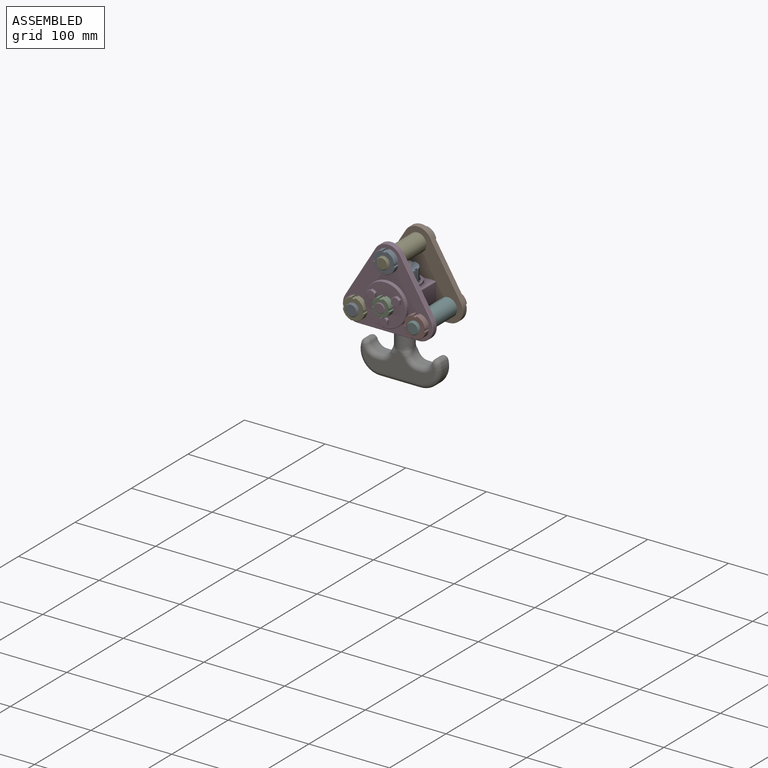
[diagram: assembled view]
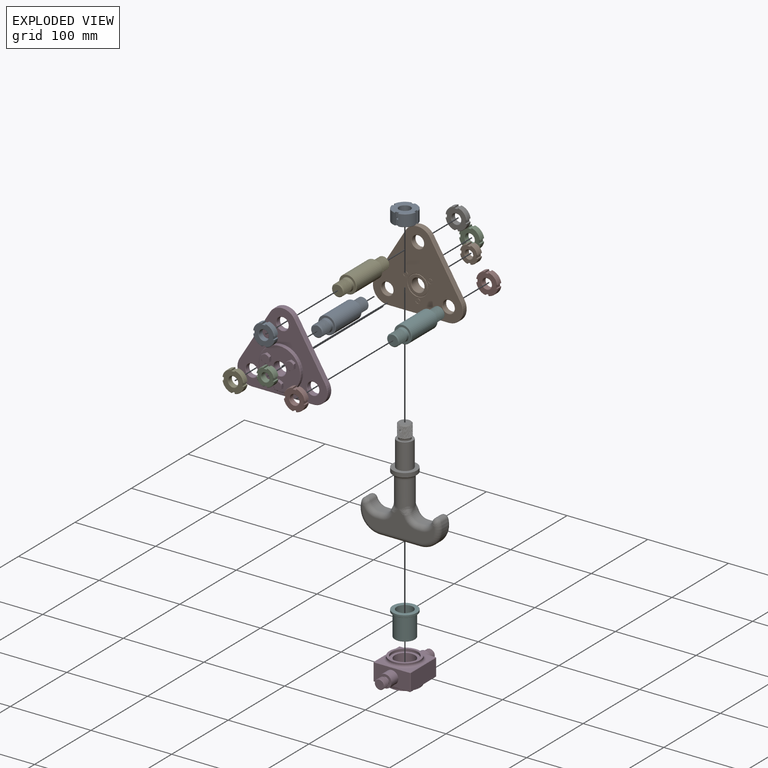
[diagram: exploded view]
GUIDED TOUR — MATED ASSEMBLY WITH SUBASSEMBLIES (Onshape document 79212cf4ececd10799b1dbc1, AutoMate assembly 79212cf4ececd10799b1dbc1_5e8a66c108269c9b4a3e70d1_1110fec8fb745d317670bb05_default)

This assembly has 25 component occurrences arranged in 17 top-level units: 15 individual components plus 2 subassemblies (S0, S1). The tour has two levels: first the top level, where each subassembly is treated as one rigid unit; then each subassembly is toured internally in its own section (nesting deeper than one subassembly level is flattened into its subassembly's section).

Components are labeled P0..P24 across the whole record; subassembly units are labeled S0..S1. A mate is a constraint between two units; its type names the relative motion it leaves free:
  FASTENED — locks the two components together rigidly (no relative motion),
  REVOLUTE — leaves rotation about the listed axis free (a hinge).
Axis/direction vectors are unit vectors and 'through' points are millimeter coordinates, both in the assembly's world frame.

TOP-LEVEL MATES (between units; each subassembly's internal mates are listed in its own section)
  1. FASTENED "Fastened 12": P5 <-> P0, direction (0.000, 0.000, 1.000) through (0.00, -30.00, 15.50) mm
  2. REVOLUTE "Revolute 1": S0 <-> P19, axis (0.000, -1.000, 0.000) through (0.00, -7.00, 0.00) mm
  3. REVOLUTE "Revolute 2": P19 <-> P5, axis (0.000, 0.000, 1.000) through (0.00, -30.00, 12.50) mm
  4. FASTENED "Fastened 8": P2 <-> S0, direction (0.000, -1.000, 0.000) through (-38.00, 0.00, -14.00) mm
  5. FASTENED "Fastened 1": P20 <-> S0, direction (0.000, 1.000, 0.000) through (0.00, -7.00, 48.39) mm
  6. FASTENED "Fastened 6": P6 <-> S0, direction (0.000, -1.000, 0.000) through (0.00, 0.00, 48.39) mm
  7. FASTENED "Fastened 3": S0 <-> P21, direction (0.000, -1.000, 0.000) through (38.00, -7.00, -14.00) mm
  8. FASTENED "Fastened 5": P20 <-> S1, direction (0.000, -1.000, 0.000) through (0.00, -53.00, 48.39) mm
  9. FASTENED "Fastened 7": P7 <-> S0, direction (0.000, -1.000, 0.000) through (38.00, 0.00, -14.00) mm
  10. FASTENED "Fastened 14": P18 <-> P19, direction (0.000, 1.000, 0.000) through (0.00, -65.00, 0.00) mm
  11. FASTENED "Fastened 11": P4 <-> S1, direction (0.000, 1.000, 0.000) through (-38.00, -60.00, -14.00) mm
  12. FASTENED "Fastened 10": P23 <-> S1, direction (0.000, 1.000, 0.000) through (38.00, -60.00, -14.00) mm
  13. FASTENED "Fastened 4": P22 <-> P5, direction (0.000, 0.000, 1.000) through (0.00, -30.00, 15.50) mm
  14. FASTENED "Fastened 13": P19 <-> P16, direction (0.000, 1.000, 0.000) through (0.00, 5.00, 0.00) mm
  15. FASTENED "Fastened 9": P10 <-> S1, direction (0.000, 1.000, 0.000) through (0.00, -60.00, 48.39) mm
  16. FASTENED "Fastened 2": P24 <-> S0, direction (0.000, 1.000, 0.000) through (-38.00, -7.00, -14.00) mm

TOP-LEVEL ASSEMBLY ORDER
  1. S0 — the base component [order heuristic]
  2. P2 — core [order heuristic]
  3. P7 — core [order heuristic]
  4. P19 — core [order heuristic]
  5. P20 — core [order heuristic]
  6. P21 — core [order heuristic]
  7. P24 — core [order heuristic]
  8. S1 — core [order heuristic]
  9. P5 — core [order heuristic]
  10. P16 — core [order heuristic]
  11. P18 — core [order heuristic]
  12. P22 — core [order heuristic]
  13. P4 — core [order heuristic]
  14. P6 [order verified]
  15. P0 — core [order heuristic]
  16. P23 — core [order heuristic]
  17. P10 — core [order heuristic]
Order-tag legend:
  [order verified] — this step's position reverses a verified removal order: the component was checked to insert without passing through the ones already placed.
  [order heuristic] — the first 16 components form the assembly's core: parts whose collision-free extraction could not be verified, listed in mate-graph order.

Of the 25 component occurrences, 5 carry the full construction recipe — the FeatureScript program that regenerates the part's solid from scratch; the rest are supplied as boundary geometry only. Each toured unit is shown spotlighted twice — assembled, then exploded with a leader line back to its socket (green = recipe-attached component, orange = geometry-only, blue = subassembly unit; the rest desaturated gray).
NOTE — document 2 of 2 of this assembly tour. The two overview renders and the header above are repeated from document 1; the component sections below continue where the previous document stopped.
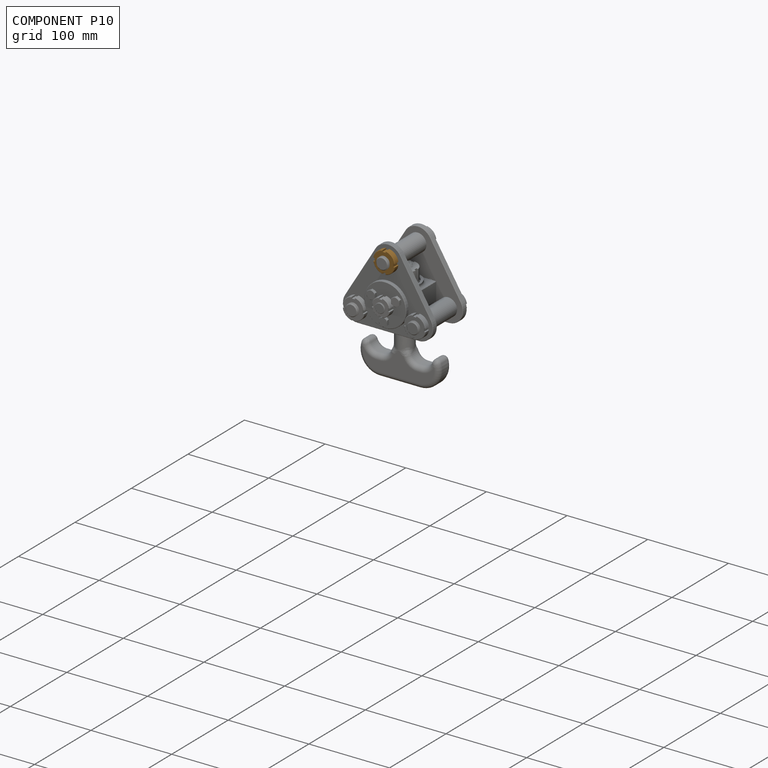
[diagram: component P10 — assembled]
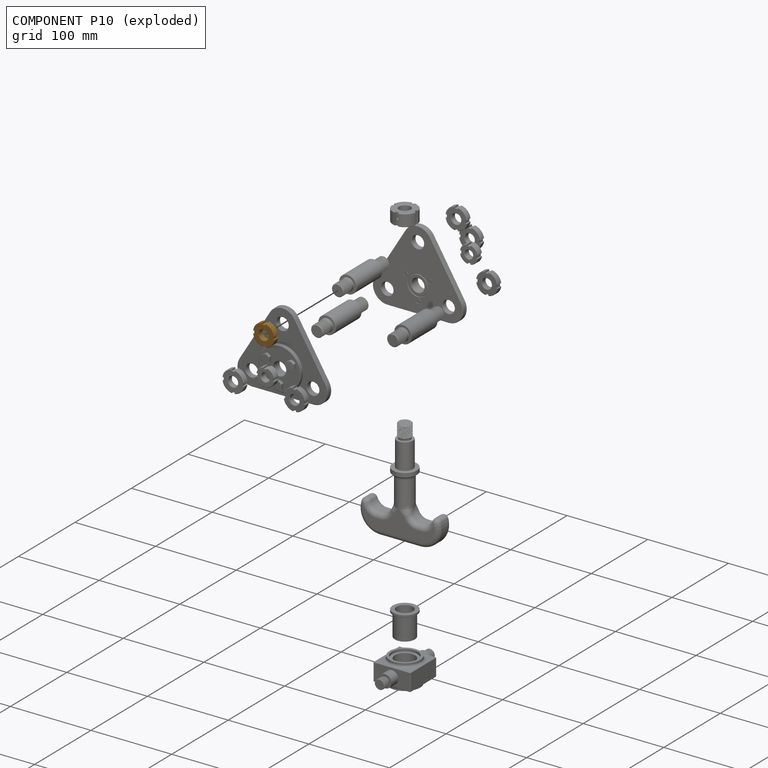
[diagram: component P10 — exploded]
COMPONENT P10 — geometry summary (no construction recipe available for this part):
  bounding box: 26.7 x 26.7 x 7.0 mm
  B-rep topology: 1 solid, 29 faces, 158 edges
  volume: 2958 mm^3 (59% of its bounding box)
  symmetry: 2-fold rotationally symmetric about the x axis; 2-fold rotationally symmetric about the y axis; 4-fold rotationally symmetric about the z axis; mirror-symmetric across its x mid-plane, y mid-plane, z mid-plane
Held by: FASTENED mate "Fastened 9" to P3.
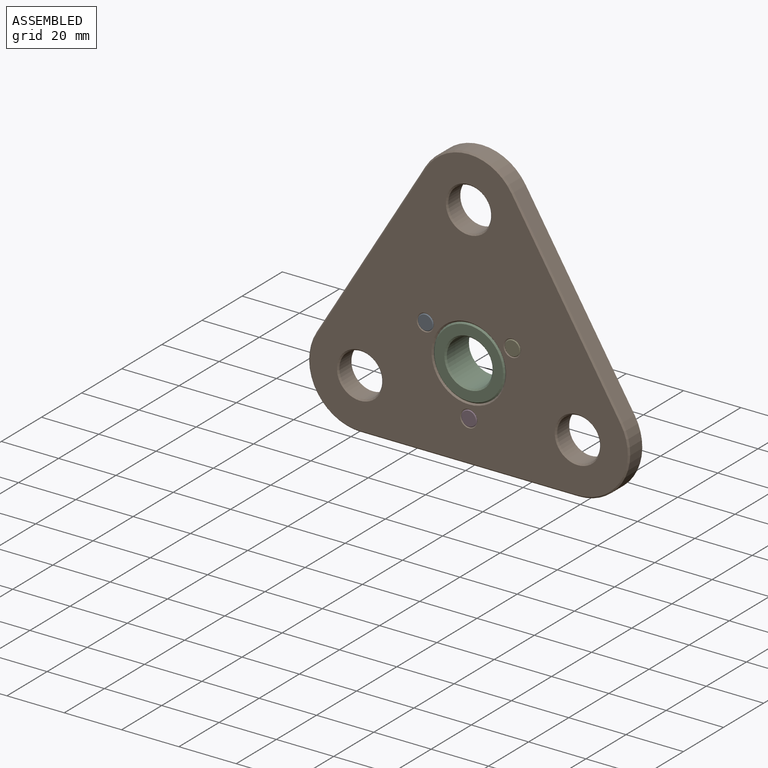
[diagram: subassembly S0 — assembled view]
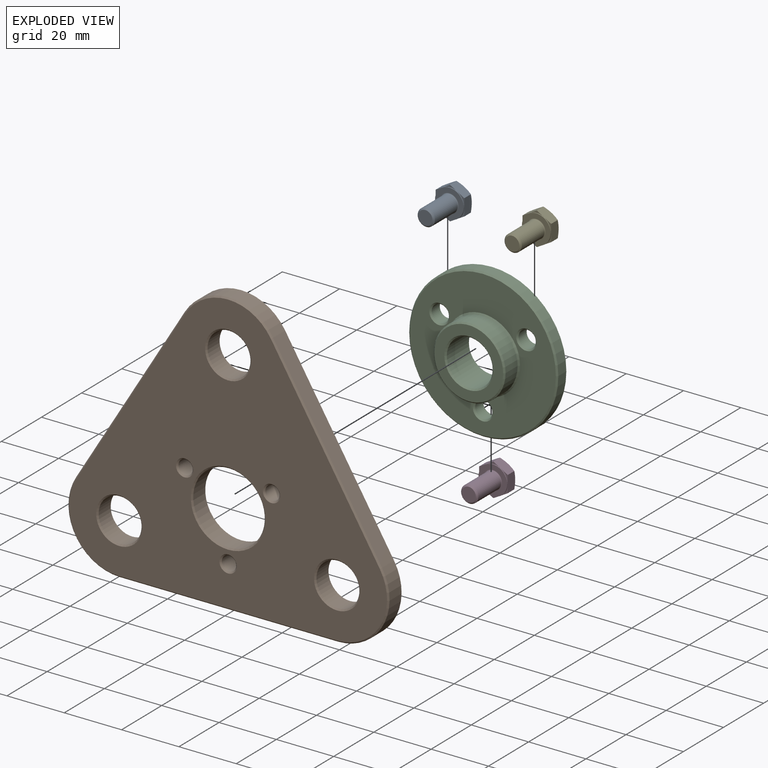
[diagram: subassembly S0 — exploded view]
SUBASSEMBLY S0 TOUR — 5 components, shown here in isolation at its own camera.

INTERNAL MATES
  1. FASTENED "Fastened 2": P1 <-> P12, direction (0.000, -1.000, 0.000) through (-15.16, 5.00, 8.75) mm
  2. FASTENED "Fastened 1": P12 <-> P8, direction (0.000, -1.000, 0.000) through (0.00, 0.00, 0.00) mm
  3. FASTENED "Fastened 2": P17 <-> P12, direction (0.000, -1.000, 0.000) through (15.16, 5.00, 8.75) mm
  4. FASTENED "Fastened 2": P15 <-> P12, direction (0.000, -1.000, 0.000) through (0.00, 5.00, -17.50) mm
  5. FASTENED "Fastened 1": P12 <-> P8, direction (0.000, -1.000, 0.000) through (0.00, 0.00, 0.00) mm
  6. FASTENED "Fastened 2": P1 <-> P12, direction (0.000, -1.000, 0.000) through (-15.16, 5.00, 8.75) mm
  7. FASTENED "Fastened 2": P17 <-> P12, direction (0.000, -1.000, 0.000) through (15.16, 5.00, 8.75) mm
  8. FASTENED "Fastened 2": P15 <-> P12, direction (0.000, -1.000, 0.000) through (0.00, 5.00, -17.50) mm

ASSEMBLY ORDER (within the subassembly)
  1. P12 — the base component [order heuristic]
  2. P8 — core [order heuristic]
  3. P17 [order verified]
  4. P1 [order verified]
  5. P15 [order verified]
Order-tag legend:
  [order verified] — this step's position reverses a verified removal order: the component was checked to insert without passing through the ones already placed.
  [order heuristic] — the first 2 components form the assembly's core: parts whose collision-free extraction could not be verified, listed in mate-graph order.
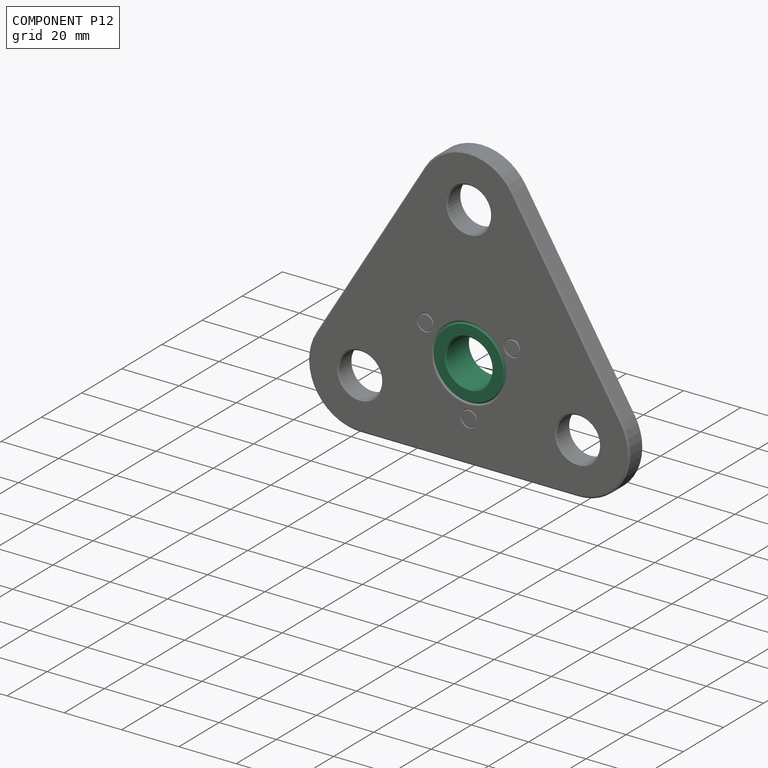
[diagram: component P12 — assembled]
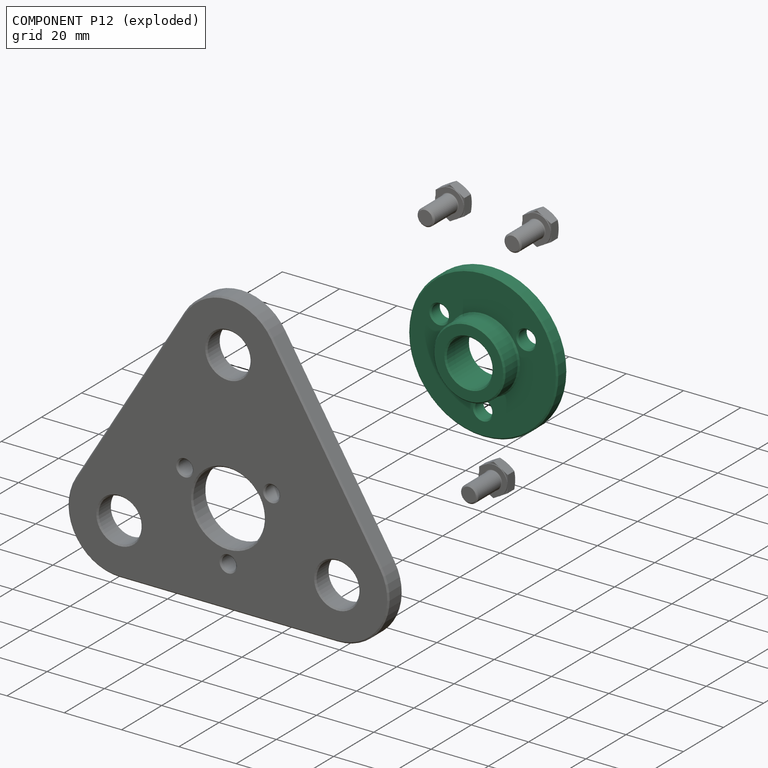
[diagram: component P12 — exploded]
COMPONENT P12 — recipe-attached (CADFS 00941908, mesh-verified: the recipe's output STEP matches this component's geometry to below the mesh-comparison resolution (tessellation chordal tolerance ~0.112 mm)).
Held by: FASTENED mate "Fastened 2" to P1; FASTENED mate "Fastened 1" to P8; FASTENED mate "Fastened 2" to P17; FASTENED mate "Fastened 2" to P15; FASTENED mate "Fastened 1" to P8; FASTENED mate "Fastened 2" to P1; FASTENED mate "Fastened 2" to P17; FASTENED mate "Fastened 2" to P15.
Construction recipe (FeatureScript — the CAD program that rebuilds this solid; sketch coordinates are in the units given by the * unit suffixes, e.g. mm):

FeatureScript 1977;
import(path : "onshape/std/geometry.fs", version : "1977.0");
import(path : "onshape/std/common.fs", version : "1977.0");
const mm = millimeter;
const VERTEX = EntityType.VERTEX;
const EDGE = EntityType.EDGE;
const FACE = EntityType.FACE;
const BODY = EntityType.BODY;
function v(x, y){return vector(x, y);}
function OD(order){return orderDisambiguation(order);}
function OSD(set){return originalSetDisambiguation(set);}
function TD(topology){return topologyDisambiguation(topology);}
function TDD(query){return trueDependencyDisambiguation(query);}
function sQuery(a, b, c) {return sketchEntityQuery(a, b, c);}

annotation { "Feature Type Name" : "Feature", "Feature Type Description" : "" }
export const myFeature = defineFeature(function(context is Context, id is Id, definition is map)
    precondition{}
    {
        {
            var Q0;
            Q0=qCreatedBy(makeId("Top.planeOp"),FACE);
            var sketch = newSketch(context, id + "F0", { "sketchPlane" : qUnion([Q0])});
            skCircle(sketch, "E0", {"center": v(0, 0) * mm, "radius": 26 * mm});
            skCircle(sketch, "E1", {"center": v(0, 0) * mm, "radius": 12.5 * mm});
            skCircle(sketch, "E2", {"center": v(0, 0) * mm, "radius": 17.5 * mm, "construction": true});
            skPoint(sketch, "E3", {"position": v(0, -17.5) * mm});
            skLineSegment(sketch, "E4", {"start": v(0, 0) * mm, "end": v(-15.16, 8.75) * mm, "construction": true});
            skLineSegment(sketch, "E5", {"start": v(0, 0) * mm, "end": v(15.16, 8.75) * mm, "construction": true});
            skCircle(sketch, "E6", {"center": v(0, -17.5) * mm, "radius": 3 * mm});
            skCircle(sketch, "E7", {"center": v(-15.16, 8.75) * mm, "radius": 3 * mm});
            skCircle(sketch, "E8", {"center": v(15.16, 8.75) * mm, "radius": 3 * mm});
            skCircle(sketch, "E9", {"center": v(0, 0) * mm, "radius": 8 * mm});
            skSolve(sketch);
        }
        {
            var Q0;
            Q0=makeQuery(id+"F0.imprint","IMPRINT",FACE,{"disambiguationData":[TD([[makeQuery(id+"F0.imprint","IMPRINT",EDGE,{"derivedFrom":sQuery(id+"F0.wireOp",EDGE,"E0")}),1.0]])]});
            extrude(context, id + "F1", {"entities" : qUnion([Q0]), "depth" : 5 * mm, "offsetDistance" : 25 * mm});
        }
        {
            var Q0;
            Q0=makeQuery(id+"F0.imprint","IMPRINT",FACE,{"disambiguationData":[TD([[makeQuery(id+"F0.imprint","IMPRINT",EDGE,{"derivedFrom":sQuery(id+"F0.wireOp",EDGE,"E1")}),1.0]])]});
            extrude(context, id + "F2", {"entities" : qUnion([Q0]), "operationType" : NewBodyOperationType.ADD, "depth" : 12 * mm, "offsetDistance" : 25 * mm});
        }
        {
            var Q0;
            Q0=makeQuery(id+"F2.opExtrude","CAP_FACE",FACE,{"disambiguationData":[OSD([sQuery(id+"F0.wireOp",EDGE,"E1"),sQuery(id+"F0.wireOp",EDGE,"E9")])],"isStart":false});
            var Q1;
            Q1=makeQuery(id+"F1.opExtrude","CAP_FACE",FACE,{"disambiguationData":[OSD([sQuery(id+"F0.wireOp",EDGE,"E0"),sQuery(id+"F0.wireOp",EDGE,"E1"),sQuery(id+"F0.wireOp",EDGE,"E6"),sQuery(id+"F0.wireOp",EDGE,"E7"),sQuery(id+"F0.wireOp",EDGE,"E8")])],"isStart":false});
            var Q2;
            {var subQ0=sQuery(id+"F0.wireOp",EDGE,"E1");Q2=makeQuery(id+"F2.boolean.opBoolean","MERGE",FACE,{"derivedFrom":[makeQuery(id+"F1.opExtrude","CAP_FACE",FACE,{"disambiguationData":[OSD([sQuery(id+"F0.wireOp",EDGE,"E0"),subQ0,sQuery(id+"F0.wireOp",EDGE,"E6"),sQuery(id+"F0.wireOp",EDGE,"E7"),sQuery(id+"F0.wireOp",EDGE,"E8")])],"isStart":true}),makeQuery(id+"F2.opExtrude","CAP_FACE",FACE,{"disambiguationData":[OSD([subQ0,sQuery(id+"F0.wireOp",EDGE,"E9")])],"isStart":true})]});}
            chamfer(context, id + "F3", {"entities" : qUnion([Q0, Q1, Q2]), "width" : 0.5 * mm, "tangentPropagation" : true});
        }
    });
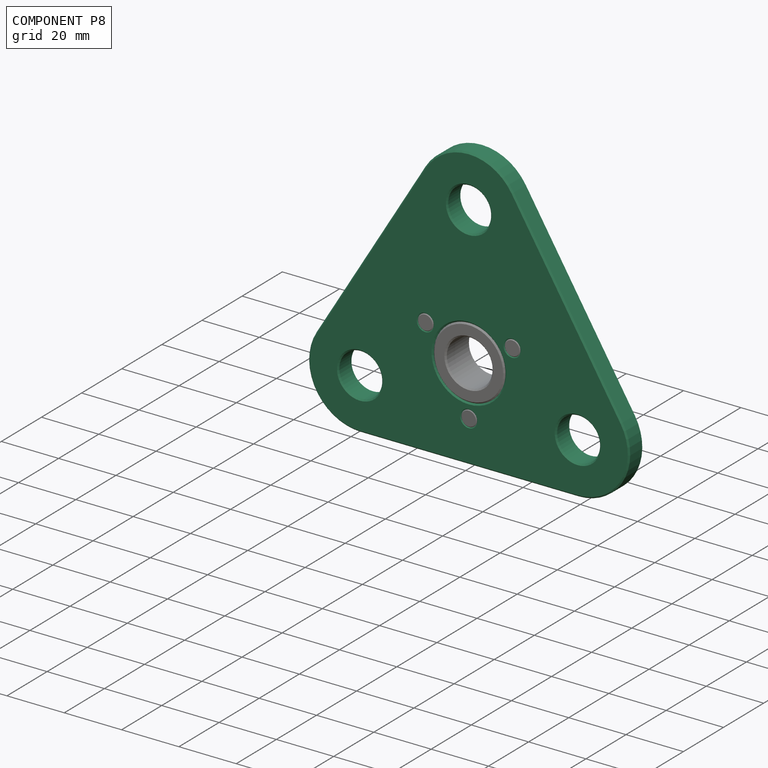
[diagram: component P8 — assembled]
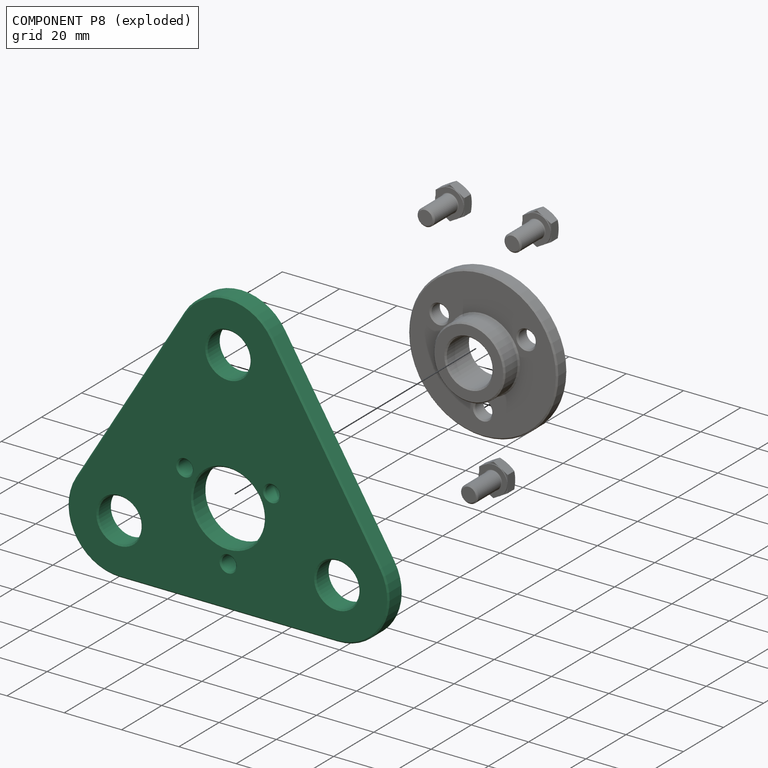
[diagram: component P8 — exploded]
COMPONENT P8 — recipe-attached (CADFS 00941914, mesh-verified: the recipe's output STEP matches this component's geometry to below the mesh-comparison resolution (tessellation chordal tolerance ~0.224 mm)).
Held by: FASTENED mate "Fastened 1" to P12; FASTENED mate "Fastened 1" to P12.
Construction recipe (FeatureScript — the CAD program that rebuilds this solid; sketch coordinates are in the units given by the * unit suffixes, e.g. mm):

FeatureScript 1977;
import(path : "onshape/std/geometry.fs", version : "1977.0");
import(path : "onshape/std/common.fs", version : "1977.0");
const mm = millimeter;
const VERTEX = EntityType.VERTEX;
const EDGE = EntityType.EDGE;
const FACE = EntityType.FACE;
const BODY = EntityType.BODY;
function v(x, y){return vector(x, y);}
function OD(order){return orderDisambiguation(order);}
function OSD(set){return originalSetDisambiguation(set);}
function TD(topology){return topologyDisambiguation(topology);}
function TDD(query){return trueDependencyDisambiguation(query);}
function sQuery(a, b, c) {return sketchEntityQuery(a, b, c);}

annotation { "Feature Type Name" : "Feature", "Feature Type Description" : "" }
export const myFeature = defineFeature(function(context is Context, id is Id, definition is map)
    precondition{}
    {
        {
            var Q0;
            Q0=qCreatedBy(makeId("Front.planeOp"),FACE);
            var sketch = newSketch(context, id + "F0", { "sketchPlane" : qUnion([Q0])});
            skLineSegment(sketch, "E0", {"start": v(-38, -32) * mm, "end": v(38, -32) * mm});
            skLineSegment(sketch, "E1", {"start": v(53.37, -4.64) * mm, "end": v(15.37, 57.76) * mm});
            skLineSegment(sketch, "E2", {"start": v(-15.37, 57.76) * mm, "end": v(-53.37, -4.64) * mm});
            skPoint(sketch, "E3.visualSharp", {"position": v(0, 83) * mm});
            skArc(sketch, "E3.filletArc", {"start": v(15.37, 57.76) * mm, "mid": v(0, 66.4) * mm, "end": v(-15.37, 57.76) * mm});
            skPoint(sketch, "E4.visualSharp", {"position": v(70.04, -32) * mm});
            skArc(sketch, "E4.filletArc", {"start": v(38, -32) * mm, "mid": v(53.7, -22.82) * mm, "end": v(53.37, -4.64) * mm});
            skPoint(sketch, "E5.visualSharp", {"position": v(-70.04, -32) * mm});
            skArc(sketch, "E5.filletArc", {"start": v(-53.37, -4.64) * mm, "mid": v(-53.7, -22.82) * mm, "end": v(-38, -32) * mm});
            skCircle(sketch, "E6", {"center": v(0, 48.4) * mm, "radius": 7.5 * mm});
            skCircle(sketch, "E7", {"center": v(-38, -14) * mm, "radius": 7.5 * mm});
            skCircle(sketch, "E8", {"center": v(38, -14) * mm, "radius": 7.5 * mm});
            skCircle(sketch, "E9", {"center": v(0, 0) * mm, "radius": 12.5 * mm});
            skCircle(sketch, "E10", {"center": v(0, 0) * mm, "radius": 17.5 * mm, "construction": true});
            skLineSegment(sketch, "E11", {"start": v(0, 0) * mm, "end": v(-15.16, 8.75) * mm, "construction": true});
            skLineSegment(sketch, "E12", {"start": v(0, 0) * mm, "end": v(15.16, 8.75) * mm, "construction": true});
            skPoint(sketch, "E13", {"position": v(0, -17.5) * mm});
            skSolve(sketch);
        }
        {
            var Q0;
            Q0 = qSketchRegion(id + "F0", true);
            extrude(context, id + "F1", {"entities" : qUnion([Q0]), "depth" : 7 * mm, "offsetDistance" : 25 * mm});
        }
        {
            var Q0;
            Q0=makeQuery(id+"F1.opExtrude","CAP_FACE",FACE,{"disambiguationData":[OSD([sQuery(id+"F0.wireOp",EDGE,"E0"),sQuery(id+"F0.wireOp",EDGE,"E1"),sQuery(id+"F0.wireOp",EDGE,"E2"),sQuery(id+"F0.wireOp",EDGE,"E3.filletArc"),sQuery(id+"F0.wireOp",EDGE,"E4.filletArc"),sQuery(id+"F0.wireOp",EDGE,"E5.filletArc"),sQuery(id+"F0.wireOp",EDGE,"E6"),sQuery(id+"F0.wireOp",EDGE,"E7"),sQuery(id+"F0.wireOp",EDGE,"E8"),sQuery(id+"F0.wireOp",EDGE,"E9")])],"isStart":false});
            var sketch = newSketch(context, id + "F2", { "sketchPlane" : qUnion([Q0])});
            skPoint(sketch, "E14.0", {"position": v(-15.16, 8.75) * mm});
            skPoint(sketch, "E14.1", {"position": v(0, -17.5) * mm});
            skPoint(sketch, "E14.2", {"position": v(15.16, 8.75) * mm});
            skSolve(sketch);
        }
        {
            var Q0;
            Q0=sQuery(id+"F2.wireOp",VERTEX,"E14.0");
            var Q1;
            Q1=sQuery(id+"F2.wireOp",VERTEX,"E14.2");
            var Q2;
            Q2=sQuery(id+"F2.wireOp",VERTEX,"E14.1");
            var Q3;
            Q3=makeQuery(id+"F1.opExtrude","SWEPT_BODY",BODY,{"disambiguationData":[OSD([sQuery(id+"F0.wireOp",EDGE,"E0"),sQuery(id+"F0.wireOp",EDGE,"E1"),sQuery(id+"F0.wireOp",EDGE,"E2"),sQuery(id+"F0.wireOp",EDGE,"E3.filletArc"),sQuery(id+"F0.wireOp",EDGE,"E4.filletArc"),sQuery(id+"F0.wireOp",EDGE,"E5.filletArc"),sQuery(id+"F0.wireOp",EDGE,"E6"),sQuery(id+"F0.wireOp",EDGE,"E7"),sQuery(id+"F0.wireOp",EDGE,"E8"),sQuery(id+"F0.wireOp",EDGE,"E9")])]});
            hole(context, id + "F3", {"style" : HoleStyle.SIMPLE, "endStyle" : HoleEndStyle.THROUGH, "standardTappedOrClearance" : lookupTablePath({ "standard" : "ISO", "engagement" : "75%", "pitch" : "1 mm", "size" : "M6", "type" : "Tapped" }), "standardBlindInLast" : lookupTablePath({ "standard" : "ISO", "fit" : "Normal", "engagement" : "75%", "pitch" : "1 mm", "size" : "M6", "type" : "Clearance & tapped" }), "holeDiameter" : 5 * mm, "majorDiameter" : 6 * mm, "showTappedDepth" : true, "isTappedThrough" : true, "tappedDepth" : 15 * mm, "tapClearance" : 3, "startFromSketch" : true, "locations" : qUnion([Q0, Q1, Q2]), "scope" : qUnion([Q3])});
        }
        {
            var Q0;
            Q0=makeQuery(id+"F1.opExtrude","CAP_FACE",FACE,{"disambiguationData":[OSD([sQuery(id+"F0.wireOp",EDGE,"E0"),sQuery(id+"F0.wireOp",EDGE,"E1"),sQuery(id+"F0.wireOp",EDGE,"E2"),sQuery(id+"F0.wireOp",EDGE,"E3.filletArc"),sQuery(id+"F0.wireOp",EDGE,"E4.filletArc"),sQuery(id+"F0.wireOp",EDGE,"E5.filletArc"),sQuery(id+"F0.wireOp",EDGE,"E6"),sQuery(id+"F0.wireOp",EDGE,"E7"),sQuery(id+"F0.wireOp",EDGE,"E8"),sQuery(id+"F0.wireOp",EDGE,"E9"),sQuery(id+"F0.wireOp",EDGE,"EbIFcVGW-qfQ5-f0hh-bYaB-UIWmjxN4vp9O"),sQuery(id+"F0.wireOp",EDGE,"tUE3wfjz-mUNx-Vc7V-SR3N-g8dKb8yFtn6o"),sQuery(id+"F0.wireOp",EDGE,"HPJGAJ8k-gcWm-KseC-X1Br-1BvLGVH0XyRt")])],"isStart":false});
            var Q1;
            Q1=makeQuery(id+"F1.opExtrude","CAP_FACE",FACE,{"disambiguationData":[OSD([sQuery(id+"F0.wireOp",EDGE,"E0"),sQuery(id+"F0.wireOp",EDGE,"E1"),sQuery(id+"F0.wireOp",EDGE,"E2"),sQuery(id+"F0.wireOp",EDGE,"E3.filletArc"),sQuery(id+"F0.wireOp",EDGE,"E4.filletArc"),sQuery(id+"F0.wireOp",EDGE,"E5.filletArc"),sQuery(id+"F0.wireOp",EDGE,"E6"),sQuery(id+"F0.wireOp",EDGE,"E7"),sQuery(id+"F0.wireOp",EDGE,"E8"),sQuery(id+"F0.wireOp",EDGE,"E9"),sQuery(id+"F0.wireOp",EDGE,"EbIFcVGW-qfQ5-f0hh-bYaB-UIWmjxN4vp9O"),sQuery(id+"F0.wireOp",EDGE,"tUE3wfjz-mUNx-Vc7V-SR3N-g8dKb8yFtn6o"),sQuery(id+"F0.wireOp",EDGE,"HPJGAJ8k-gcWm-KseC-X1Br-1BvLGVH0XyRt")])],"isStart":true});
            chamfer(context, id + "F4", {"entities" : qUnion([Q0, Q1]), "width" : 0.5 * mm, "tangentPropagation" : true});
        }
    });
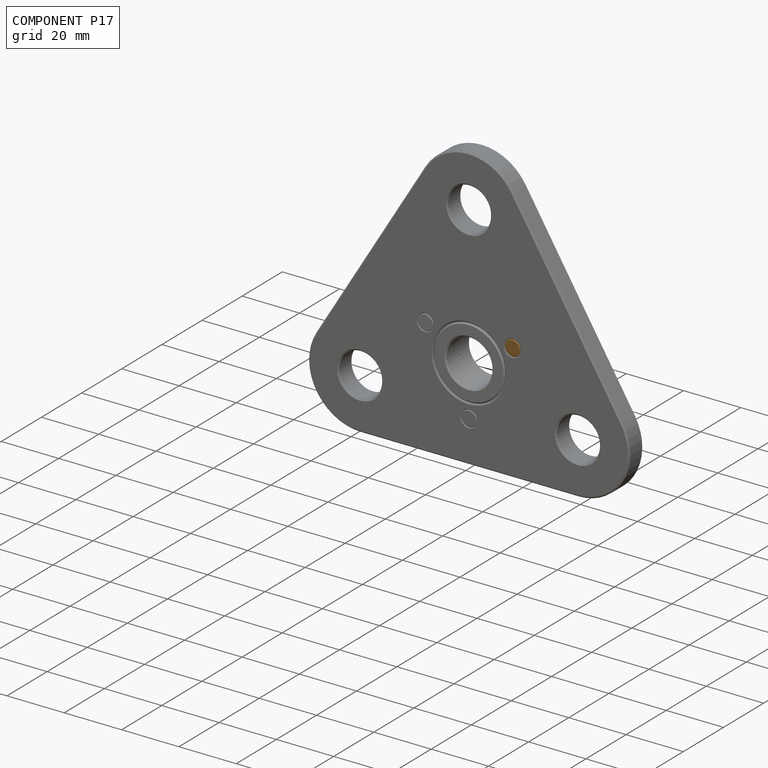
[diagram: component P17 — assembled]
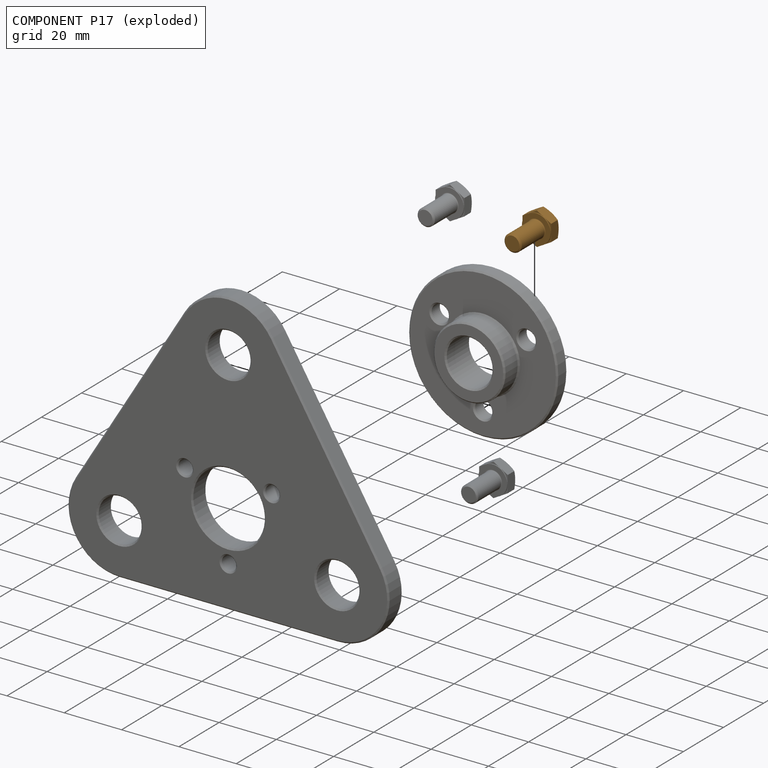
[diagram: component P17 — exploded]
COMPONENT P17 — geometry summary (no construction recipe available for this part):
  bounding box: 16.5 x 12.0 x 12.0 mm
  B-rep topology: 1 solid, 25 faces, 104 edges
  volume: 690 mm^3 (29% of its bounding box)
  symmetry: 6-fold rotationally symmetric about the x axis; mirror-symmetric across its y mid-plane, z mid-plane
Held by: FASTENED mate "Fastened 2" to P12; FASTENED mate "Fastened 2" to P12.
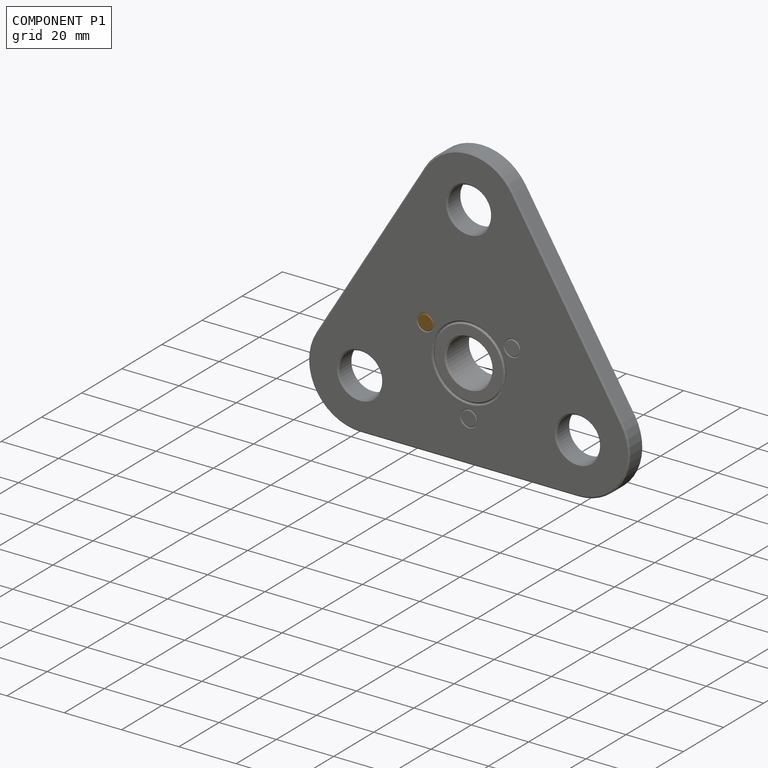
[diagram: component P1 — assembled]
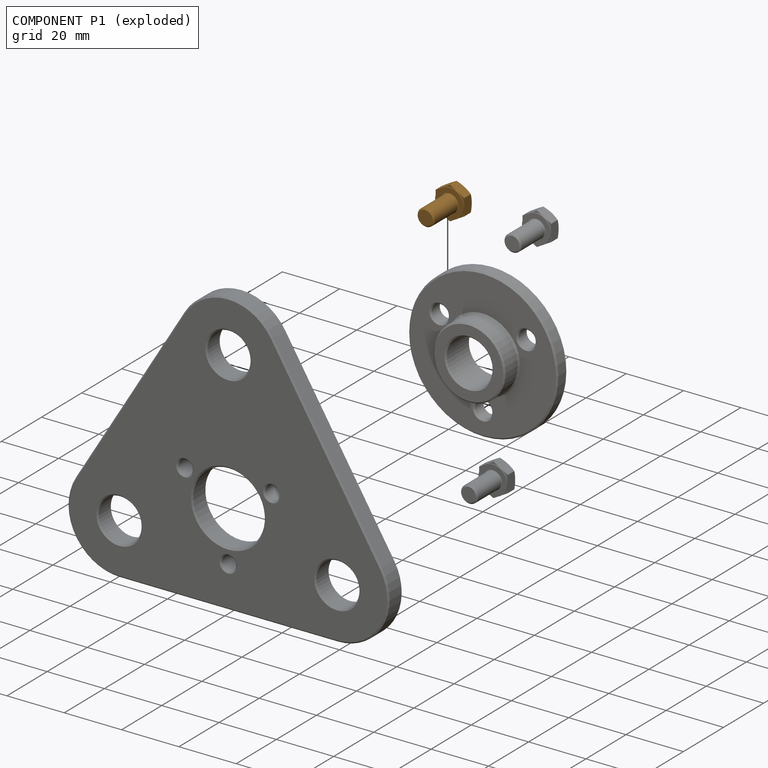
[diagram: component P1 — exploded]
COMPONENT P1 — geometry summary (no construction recipe available for this part):
  bounding box: 16.5 x 12.0 x 12.0 mm
  B-rep topology: 1 solid, 25 faces, 104 edges
  volume: 690 mm^3 (29% of its bounding box)
  symmetry: 6-fold rotationally symmetric about the x axis; mirror-symmetric across its y mid-plane, z mid-plane
Held by: FASTENED mate "Fastened 2" to P12; FASTENED mate "Fastened 2" to P12.
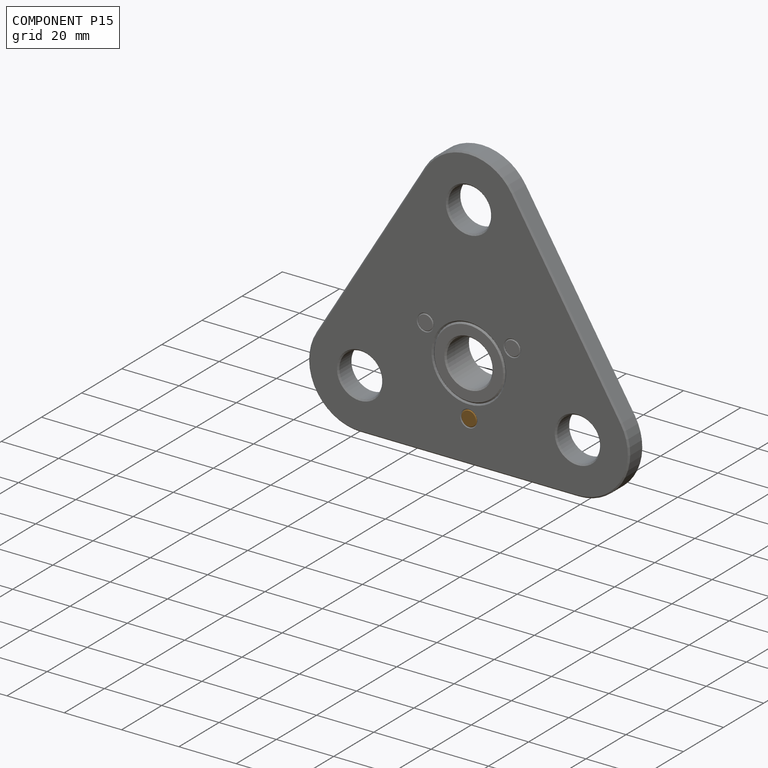
[diagram: component P15 — assembled]
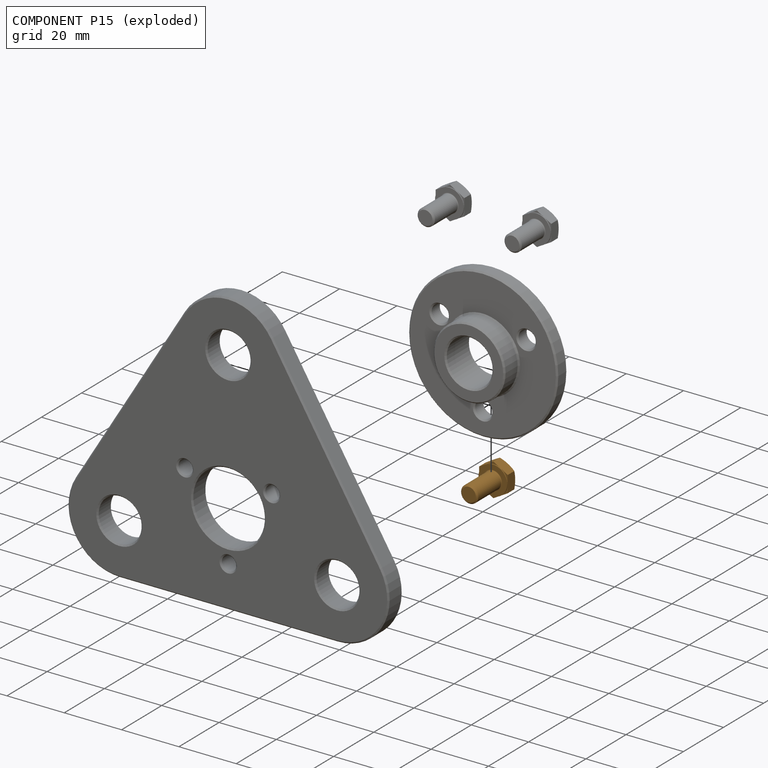
[diagram: component P15 — exploded]
COMPONENT P15 — geometry summary (no construction recipe available for this part):
  bounding box: 16.5 x 12.0 x 12.0 mm
  B-rep topology: 1 solid, 25 faces, 104 edges
  volume: 690 mm^3 (29% of its bounding box)
  symmetry: 6-fold rotationally symmetric about the x axis; mirror-symmetric across its y mid-plane, z mid-plane
Held by: FASTENED mate "Fastened 2" to P12; FASTENED mate "Fastened 2" to P12.
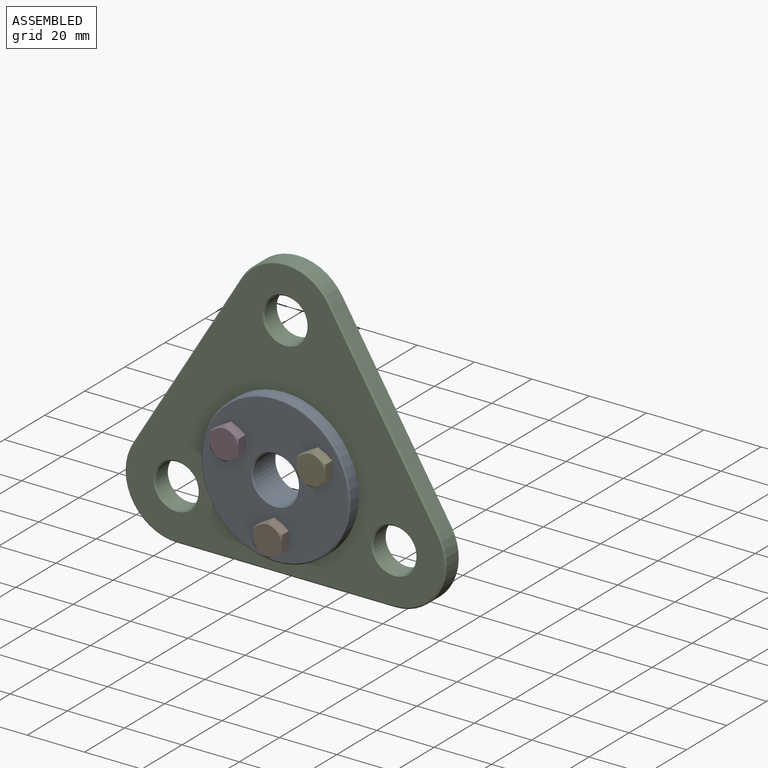
[diagram: subassembly S1 — assembled view]
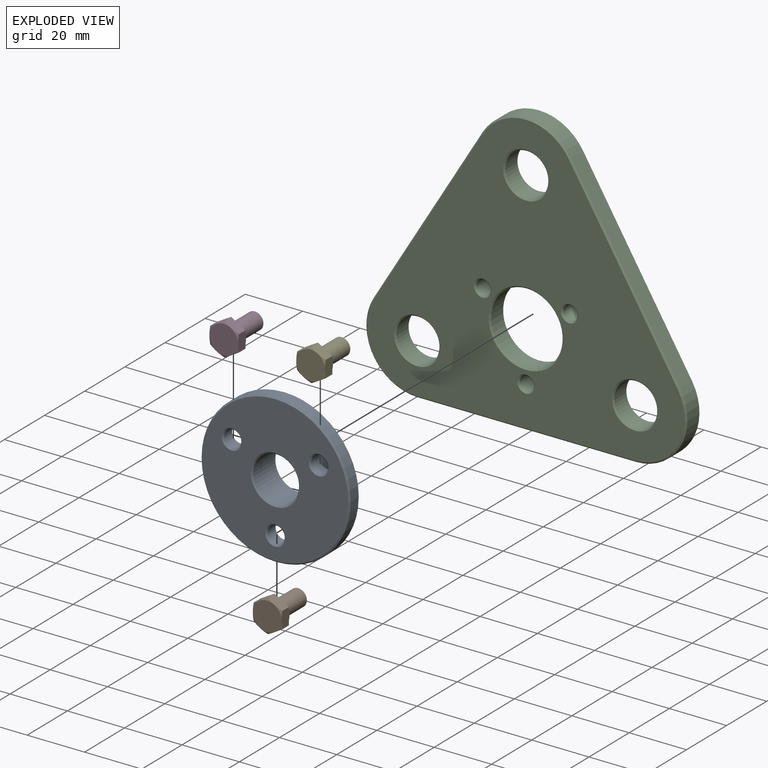
[diagram: subassembly S1 — exploded view]
SUBASSEMBLY S1 TOUR — 5 components, shown here in isolation at its own camera.

INTERNAL MATES
  1. FASTENED "Fastened 2": P14 <-> P3, direction (0.000, 1.000, 0.000) through (15.16, -65.00, 8.75) mm
  2. FASTENED "Fastened 1": P3 <-> P11, direction (0.000, 1.000, 0.000) through (0.00, -60.00, 0.00) mm
  3. FASTENED "Fastened 2": P13 <-> P3, direction (0.000, 1.000, 0.000) through (-15.16, -65.00, 8.75) mm
  4. FASTENED "Fastened 2": P9 <-> P3, direction (0.000, 1.000, 0.000) through (0.00, -65.00, -17.50) mm
  5. FASTENED "Fastened 2": P13 <-> P3, direction (0.000, 1.000, 0.000) through (-15.16, -65.00, 8.75) mm
  6. FASTENED "Fastened 2": P9 <-> P3, direction (0.000, 1.000, 0.000) through (0.00, -65.00, -17.50) mm
  7. FASTENED "Fastened 2": P14 <-> P3, direction (0.000, 1.000, 0.000) through (15.16, -65.00, 8.75) mm
  8. FASTENED "Fastened 1": P3 <-> P11, direction (0.000, 1.000, 0.000) through (0.00, -60.00, 0.00) mm

ASSEMBLY ORDER (within the subassembly)
  1. P3 — the base component [order heuristic]
  2. P11 — core [order heuristic]
  3. P14 [order verified]
  4. P13 [order verified]
  5. P9 [order verified]
Order-tag legend:
  [order verified] — this step's position reverses a verified removal order: the component was checked to insert without passing through the ones already placed.
  [order heuristic] — the first 2 components form the assembly's core: parts whose collision-free extraction could not be verified, listed in mate-graph order.
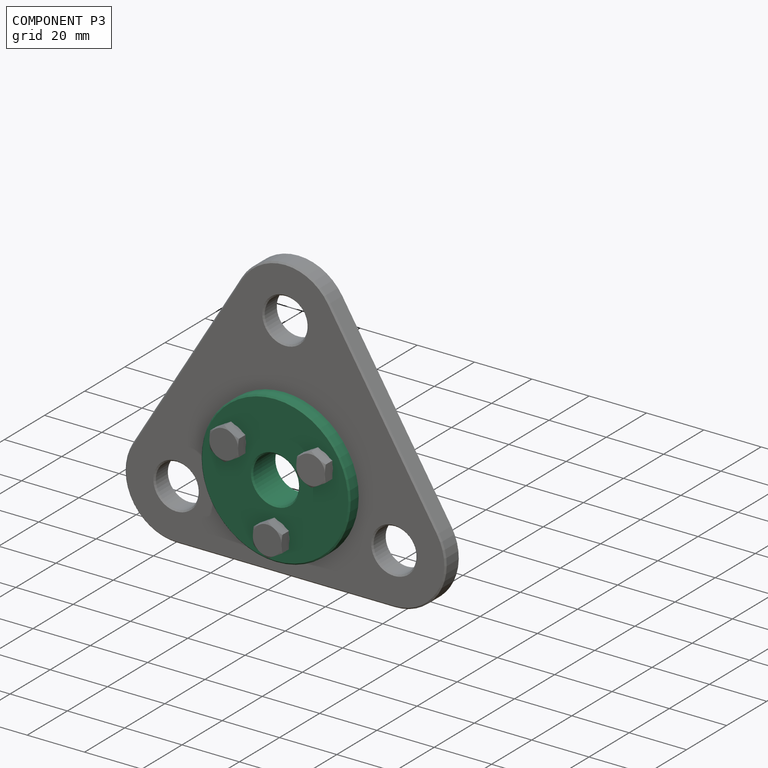
[diagram: component P3 — assembled]
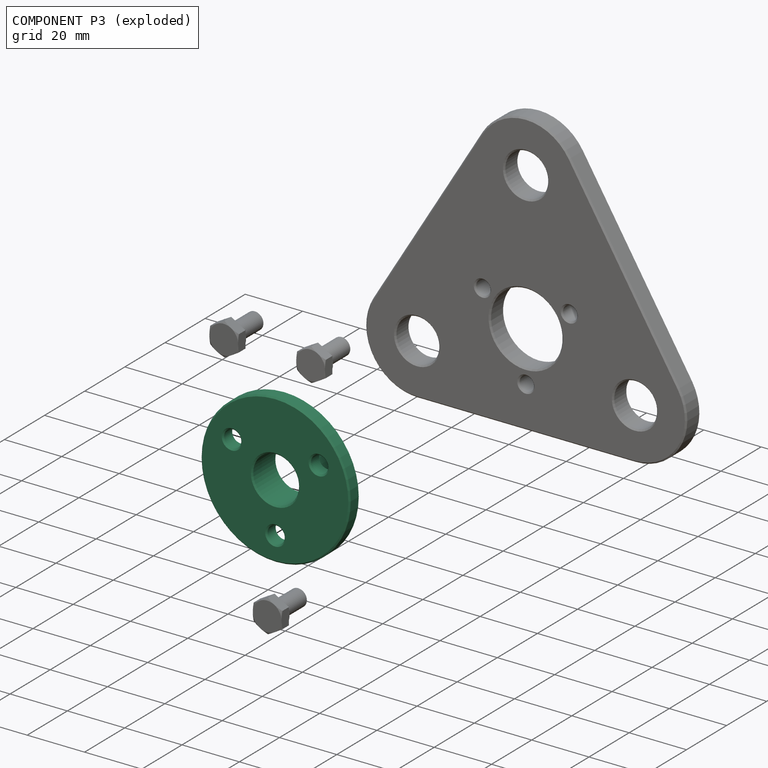
[diagram: component P3 — exploded]
COMPONENT P3 — recipe-attached (CADFS 00941908, mesh-verified: the recipe's output STEP matches this component's geometry to below the mesh-comparison resolution (tessellation chordal tolerance ~0.112 mm)).
Held by: FASTENED mate "Fastened 2" to P14; FASTENED mate "Fastened 1" to P11; FASTENED mate "Fastened 2" to P13; FASTENED mate "Fastened 2" to P9; FASTENED mate "Fastened 2" to P13; FASTENED mate "Fastened 2" to P9; FASTENED mate "Fastened 2" to P14; FASTENED mate "Fastened 1" to P11.
Construction recipe (FeatureScript — the CAD program that rebuilds this solid; sketch coordinates are in the units given by the * unit suffixes, e.g. mm):

FeatureScript 1977;
import(path : "onshape/std/geometry.fs", version : "1977.0");
import(path : "onshape/std/common.fs", version : "1977.0");
const mm = millimeter;
const VERTEX = EntityType.VERTEX;
const EDGE = EntityType.EDGE;
const FACE = EntityType.FACE;
const BODY = EntityType.BODY;
function v(x, y){return vector(x, y);}
function OD(order){return orderDisambiguation(order);}
function OSD(set){return originalSetDisambiguation(set);}
function TD(topology){return topologyDisambiguation(topology);}
function TDD(query){return trueDependencyDisambiguation(query);}
function sQuery(a, b, c) {return sketchEntityQuery(a, b, c);}

annotation { "Feature Type Name" : "Feature", "Feature Type Description" : "" }
export const myFeature = defineFeature(function(context is Context, id is Id, definition is map)
    precondition{}
    {
        {
            var Q0;
            Q0=qCreatedBy(makeId("Top.planeOp"),FACE);
            var sketch = newSketch(context, id + "F0", { "sketchPlane" : qUnion([Q0])});
            skCircle(sketch, "E0", {"center": v(0, 0) * mm, "radius": 26 * mm});
            skCircle(sketch, "E1", {"center": v(0, 0) * mm, "radius": 12.5 * mm});
            skCircle(sketch, "E2", {"center": v(0, 0) * mm, "radius": 17.5 * mm, "construction": true});
            skPoint(sketch, "E3", {"position": v(0, -17.5) * mm});
            skLineSegment(sketch, "E4", {"start": v(0, 0) * mm, "end": v(-15.16, 8.75) * mm, "construction": true});
            skLineSegment(sketch, "E5", {"start": v(0, 0) * mm, "end": v(15.16, 8.75) * mm, "construction": true});
            skCircle(sketch, "E6", {"center": v(0, -17.5) * mm, "radius": 3 * mm});
            skCircle(sketch, "E7", {"center": v(-15.16, 8.75) * mm, "radius": 3 * mm});
            skCircle(sketch, "E8", {"center": v(15.16, 8.75) * mm, "radius": 3 * mm});
            skCircle(sketch, "E9", {"center": v(0, 0) * mm, "radius": 8 * mm});
            skSolve(sketch);
        }
        {
            var Q0;
            Q0=makeQuery(id+"F0.imprint","IMPRINT",FACE,{"disambiguationData":[TD([[makeQuery(id+"F0.imprint","IMPRINT",EDGE,{"derivedFrom":sQuery(id+"F0.wireOp",EDGE,"E0")}),1.0]])]});
            extrude(context, id + "F1", {"entities" : qUnion([Q0]), "depth" : 5 * mm, "offsetDistance" : 25 * mm});
        }
        {
            var Q0;
            Q0=makeQuery(id+"F0.imprint","IMPRINT",FACE,{"disambiguationData":[TD([[makeQuery(id+"F0.imprint","IMPRINT",EDGE,{"derivedFrom":sQuery(id+"F0.wireOp",EDGE,"E1")}),1.0]])]});
            extrude(context, id + "F2", {"entities" : qUnion([Q0]), "operationType" : NewBodyOperationType.ADD, "depth" : 12 * mm, "offsetDistance" : 25 * mm});
        }
        {
            var Q0;
            Q0=makeQuery(id+"F2.opExtrude","CAP_FACE",FACE,{"disambiguationData":[OSD([sQuery(id+"F0.wireOp",EDGE,"E1"),sQuery(id+"F0.wireOp",EDGE,"E9")])],"isStart":false});
            var Q1;
            Q1=makeQuery(id+"F1.opExtrude","CAP_FACE",FACE,{"disambiguationData":[OSD([sQuery(id+"F0.wireOp",EDGE,"E0"),sQuery(id+"F0.wireOp",EDGE,"E1"),sQuery(id+"F0.wireOp",EDGE,"E6"),sQuery(id+"F0.wireOp",EDGE,"E7"),sQuery(id+"F0.wireOp",EDGE,"E8")])],"isStart":false});
            var Q2;
            {var subQ0=sQuery(id+"F0.wireOp",EDGE,"E1");Q2=makeQuery(id+"F2.boolean.opBoolean","MERGE",FACE,{"derivedFrom":[makeQuery(id+"F1.opExtrude","CAP_FACE",FACE,{"disambiguationData":[OSD([sQuery(id+"F0.wireOp",EDGE,"E0"),subQ0,sQuery(id+"F0.wireOp",EDGE,"E6"),sQuery(id+"F0.wireOp",EDGE,"E7"),sQuery(id+"F0.wireOp",EDGE,"E8")])],"isStart":true}),makeQuery(id+"F2.opExtrude","CAP_FACE",FACE,{"disambiguationData":[OSD([subQ0,sQuery(id+"F0.wireOp",EDGE,"E9")])],"isStart":true})]});}
            chamfer(context, id + "F3", {"entities" : qUnion([Q0, Q1, Q2]), "width" : 0.5 * mm, "tangentPropagation" : true});
        }
    });
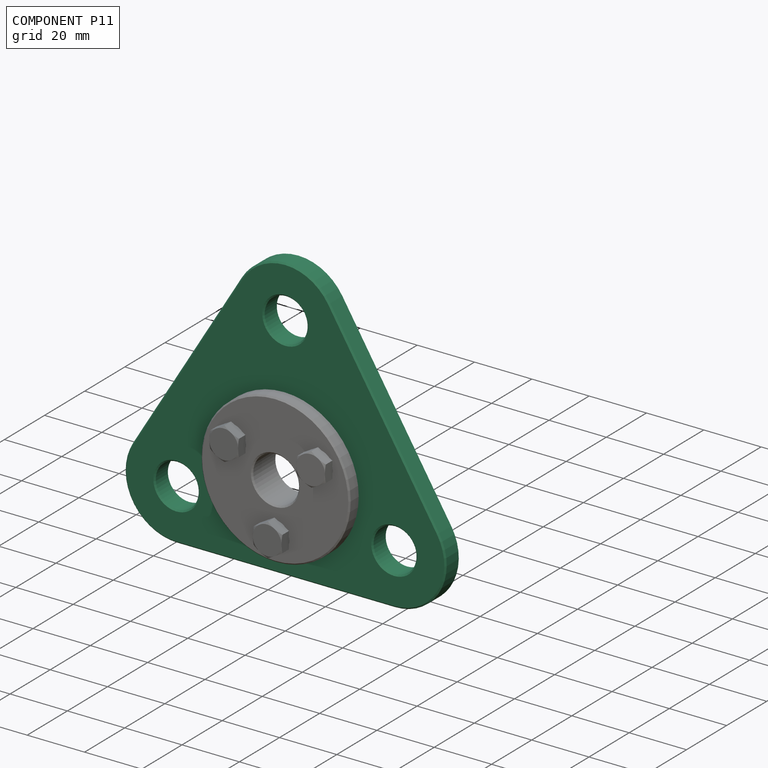
[diagram: component P11 — assembled]
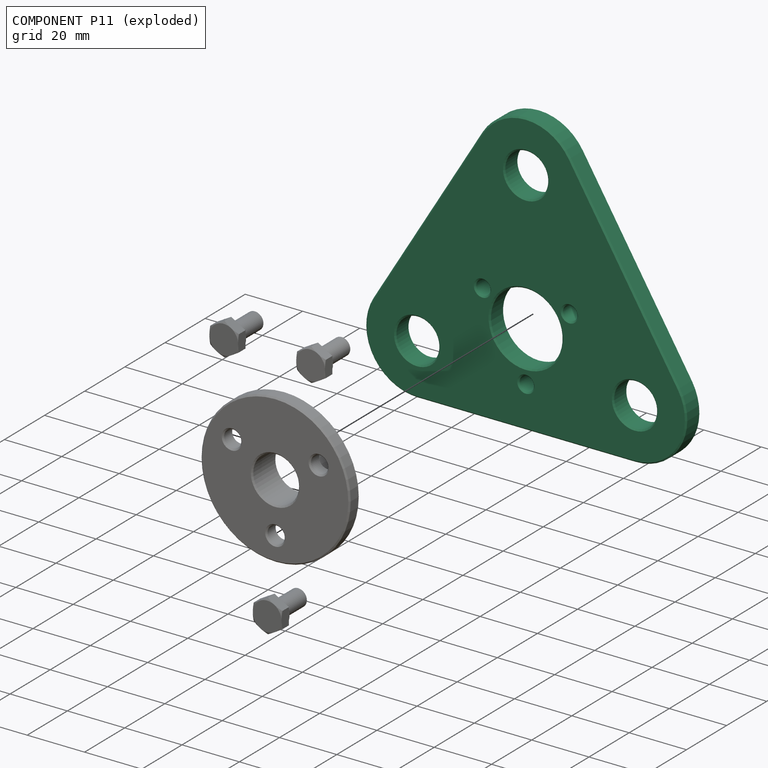
[diagram: component P11 — exploded]
COMPONENT P11 — recipe-attached (CADFS 00941914, mesh-verified: the recipe's output STEP matches this component's geometry to below the mesh-comparison resolution (tessellation chordal tolerance ~0.224 mm)).
Held by: FASTENED mate "Fastened 1" to P3; FASTENED mate "Fastened 1" to P3.
Construction recipe (FeatureScript — the CAD program that rebuilds this solid; sketch coordinates are in the units given by the * unit suffixes, e.g. mm):

FeatureScript 1977;
import(path : "onshape/std/geometry.fs", version : "1977.0");
import(path : "onshape/std/common.fs", version : "1977.0");
const mm = millimeter;
const VERTEX = EntityType.VERTEX;
const EDGE = EntityType.EDGE;
const FACE = EntityType.FACE;
const BODY = EntityType.BODY;
function v(x, y){return vector(x, y);}
function OD(order){return orderDisambiguation(order);}
function OSD(set){return originalSetDisambiguation(set);}
function TD(topology){return topologyDisambiguation(topology);}
function TDD(query){return trueDependencyDisambiguation(query);}
function sQuery(a, b, c) {return sketchEntityQuery(a, b, c);}

annotation { "Feature Type Name" : "Feature", "Feature Type Description" : "" }
export const myFeature = defineFeature(function(context is Context, id is Id, definition is map)
    precondition{}
    {
        {
            var Q0;
            Q0=qCreatedBy(makeId("Front.planeOp"),FACE);
            var sketch = newSketch(context, id + "F0", { "sketchPlane" : qUnion([Q0])});
            skLineSegment(sketch, "E0", {"start": v(-38, -32) * mm, "end": v(38, -32) * mm});
            skLineSegment(sketch, "E1", {"start": v(53.37, -4.64) * mm, "end": v(15.37, 57.76) * mm});
            skLineSegment(sketch, "E2", {"start": v(-15.37, 57.76) * mm, "end": v(-53.37, -4.64) * mm});
            skPoint(sketch, "E3.visualSharp", {"position": v(0, 83) * mm});
            skArc(sketch, "E3.filletArc", {"start": v(15.37, 57.76) * mm, "mid": v(0, 66.4) * mm, "end": v(-15.37, 57.76) * mm});
            skPoint(sketch, "E4.visualSharp", {"position": v(70.04, -32) * mm});
            skArc(sketch, "E4.filletArc", {"start": v(38, -32) * mm, "mid": v(53.7, -22.82) * mm, "end": v(53.37, -4.64) * mm});
            skPoint(sketch, "E5.visualSharp", {"position": v(-70.04, -32) * mm});
            skArc(sketch, "E5.filletArc", {"start": v(-53.37, -4.64) * mm, "mid": v(-53.7, -22.82) * mm, "end": v(-38, -32) * mm});
            skCircle(sketch, "E6", {"center": v(0, 48.4) * mm, "radius": 7.5 * mm});
            skCircle(sketch, "E7", {"center": v(-38, -14) * mm, "radius": 7.5 * mm});
            skCircle(sketch, "E8", {"center": v(38, -14) * mm, "radius": 7.5 * mm});
            skCircle(sketch, "E9", {"center": v(0, 0) * mm, "radius": 12.5 * mm});
            skCircle(sketch, "E10", {"center": v(0, 0) * mm, "radius": 17.5 * mm, "construction": true});
            skLineSegment(sketch, "E11", {"start": v(0, 0) * mm, "end": v(-15.16, 8.75) * mm, "construction": true});
            skLineSegment(sketch, "E12", {"start": v(0, 0) * mm, "end": v(15.16, 8.75) * mm, "construction": true});
            skPoint(sketch, "E13", {"position": v(0, -17.5) * mm});
            skSolve(sketch);
        }
        {
            var Q0;
            Q0 = qSketchRegion(id + "F0", true);
            extrude(context, id + "F1", {"entities" : qUnion([Q0]), "depth" : 7 * mm, "offsetDistance" : 25 * mm});
        }
        {
            var Q0;
            Q0=makeQuery(id+"F1.opExtrude","CAP_FACE",FACE,{"disambiguationData":[OSD([sQuery(id+"F0.wireOp",EDGE,"E0"),sQuery(id+"F0.wireOp",EDGE,"E1"),sQuery(id+"F0.wireOp",EDGE,"E2"),sQuery(id+"F0.wireOp",EDGE,"E3.filletArc"),sQuery(id+"F0.wireOp",EDGE,"E4.filletArc"),sQuery(id+"F0.wireOp",EDGE,"E5.filletArc"),sQuery(id+"F0.wireOp",EDGE,"E6"),sQuery(id+"F0.wireOp",EDGE,"E7"),sQuery(id+"F0.wireOp",EDGE,"E8"),sQuery(id+"F0.wireOp",EDGE,"E9")])],"isStart":false});
            var sketch = newSketch(context, id + "F2", { "sketchPlane" : qUnion([Q0])});
            skPoint(sketch, "E14.0", {"position": v(-15.16, 8.75) * mm});
            skPoint(sketch, "E14.1", {"position": v(0, -17.5) * mm});
            skPoint(sketch, "E14.2", {"position": v(15.16, 8.75) * mm});
            skSolve(sketch);
        }
        {
            var Q0;
            Q0=sQuery(id+"F2.wireOp",VERTEX,"E14.0");
            var Q1;
            Q1=sQuery(id+"F2.wireOp",VERTEX,"E14.2");
            var Q2;
            Q2=sQuery(id+"F2.wireOp",VERTEX,"E14.1");
            var Q3;
            Q3=makeQuery(id+"F1.opExtrude","SWEPT_BODY",BODY,{"disambiguationData":[OSD([sQuery(id+"F0.wireOp",EDGE,"E0"),sQuery(id+"F0.wireOp",EDGE,"E1"),sQuery(id+"F0.wireOp",EDGE,"E2"),sQuery(id+"F0.wireOp",EDGE,"E3.filletArc"),sQuery(id+"F0.wireOp",EDGE,"E4.filletArc"),sQuery(id+"F0.wireOp",EDGE,"E5.filletArc"),sQuery(id+"F0.wireOp",EDGE,"E6"),sQuery(id+"F0.wireOp",EDGE,"E7"),sQuery(id+"F0.wireOp",EDGE,"E8"),sQuery(id+"F0.wireOp",EDGE,"E9")])]});
            hole(context, id + "F3", {"style" : HoleStyle.SIMPLE, "endStyle" : HoleEndStyle.THROUGH, "standardTappedOrClearance" : lookupTablePath({ "standard" : "ISO", "engagement" : "75%", "pitch" : "1 mm", "size" : "M6", "type" : "Tapped" }), "standardBlindInLast" : lookupTablePath({ "standard" : "ISO", "fit" : "Normal", "engagement" : "75%", "pitch" : "1 mm", "size" : "M6", "type" : "Clearance & tapped" }), "holeDiameter" : 5 * mm, "majorDiameter" : 6 * mm, "showTappedDepth" : true, "isTappedThrough" : true, "tappedDepth" : 15 * mm, "tapClearance" : 3, "startFromSketch" : true, "locations" : qUnion([Q0, Q1, Q2]), "scope" : qUnion([Q3])});
        }
        {
            var Q0;
            Q0=makeQuery(id+"F1.opExtrude","CAP_FACE",FACE,{"disambiguationData":[OSD([sQuery(id+"F0.wireOp",EDGE,"E0"),sQuery(id+"F0.wireOp",EDGE,"E1"),sQuery(id+"F0.wireOp",EDGE,"E2"),sQuery(id+"F0.wireOp",EDGE,"E3.filletArc"),sQuery(id+"F0.wireOp",EDGE,"E4.filletArc"),sQuery(id+"F0.wireOp",EDGE,"E5.filletArc"),sQuery(id+"F0.wireOp",EDGE,"E6"),sQuery(id+"F0.wireOp",EDGE,"E7"),sQuery(id+"F0.wireOp",EDGE,"E8"),sQuery(id+"F0.wireOp",EDGE,"E9"),sQuery(id+"F0.wireOp",EDGE,"EbIFcVGW-qfQ5-f0hh-bYaB-UIWmjxN4vp9O"),sQuery(id+"F0.wireOp",EDGE,"tUE3wfjz-mUNx-Vc7V-SR3N-g8dKb8yFtn6o"),sQuery(id+"F0.wireOp",EDGE,"HPJGAJ8k-gcWm-KseC-X1Br-1BvLGVH0XyRt")])],"isStart":false});
            var Q1;
            Q1=makeQuery(id+"F1.opExtrude","CAP_FACE",FACE,{"disambiguationData":[OSD([sQuery(id+"F0.wireOp",EDGE,"E0"),sQuery(id+"F0.wireOp",EDGE,"E1"),sQuery(id+"F0.wireOp",EDGE,"E2"),sQuery(id+"F0.wireOp",EDGE,"E3.filletArc"),sQuery(id+"F0.wireOp",EDGE,"E4.filletArc"),sQuery(id+"F0.wireOp",EDGE,"E5.filletArc"),sQuery(id+"F0.wireOp",EDGE,"E6"),sQuery(id+"F0.wireOp",EDGE,"E7"),sQuery(id+"F0.wireOp",EDGE,"E8"),sQuery(id+"F0.wireOp",EDGE,"E9"),sQuery(id+"F0.wireOp",EDGE,"EbIFcVGW-qfQ5-f0hh-bYaB-UIWmjxN4vp9O"),sQuery(id+"F0.wireOp",EDGE,"tUE3wfjz-mUNx-Vc7V-SR3N-g8dKb8yFtn6o"),sQuery(id+"F0.wireOp",EDGE,"HPJGAJ8k-gcWm-KseC-X1Br-1BvLGVH0XyRt")])],"isStart":true});
            chamfer(context, id + "F4", {"entities" : qUnion([Q0, Q1]), "width" : 0.5 * mm, "tangentPropagation" : true});
        }
    });
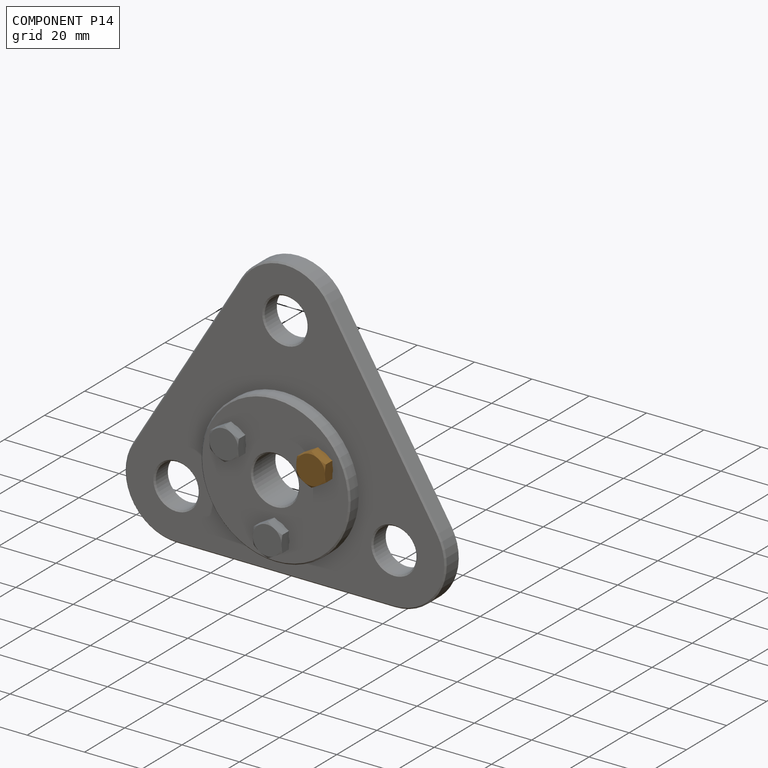
[diagram: component P14 — assembled]
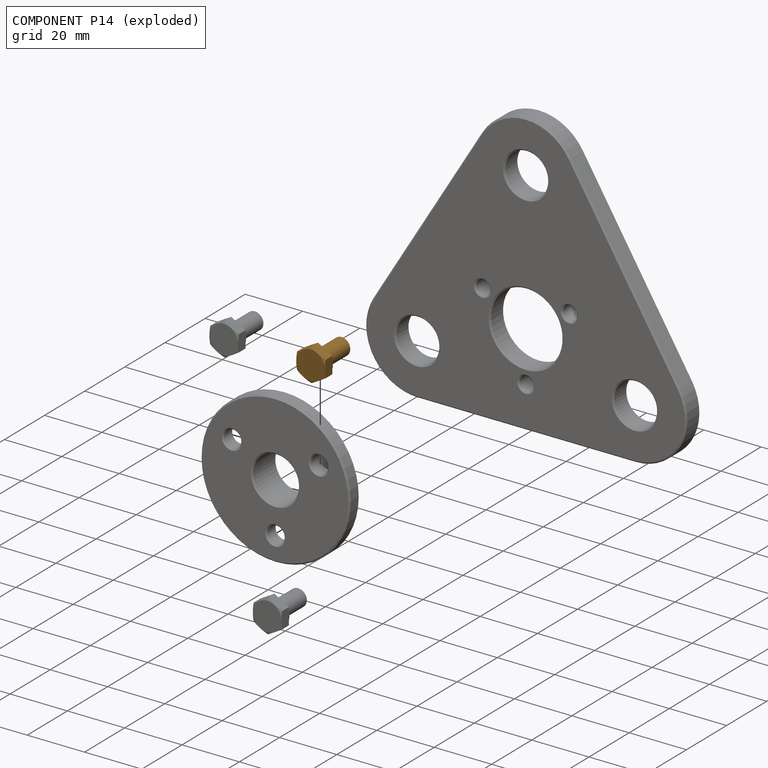
[diagram: component P14 — exploded]
COMPONENT P14 — geometry summary (no construction recipe available for this part):
  bounding box: 16.5 x 12.0 x 12.0 mm
  B-rep topology: 1 solid, 25 faces, 104 edges
  volume: 690 mm^3 (29% of its bounding box)
  symmetry: 6-fold rotationally symmetric about the x axis; mirror-symmetric across its y mid-plane, z mid-plane
Held by: FASTENED mate "Fastened 2" to P3; FASTENED mate "Fastened 2" to P3.
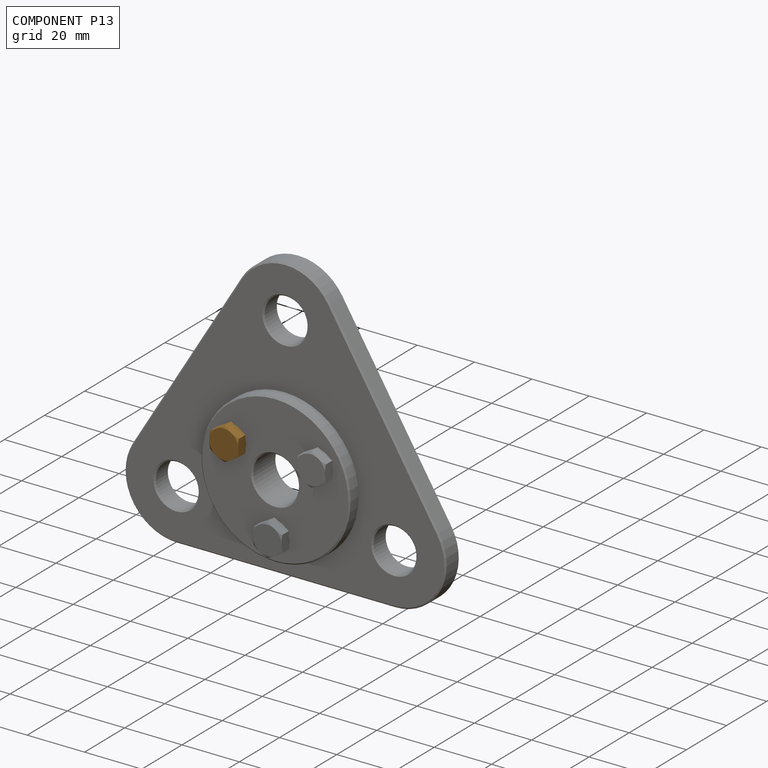
[diagram: component P13 — assembled]
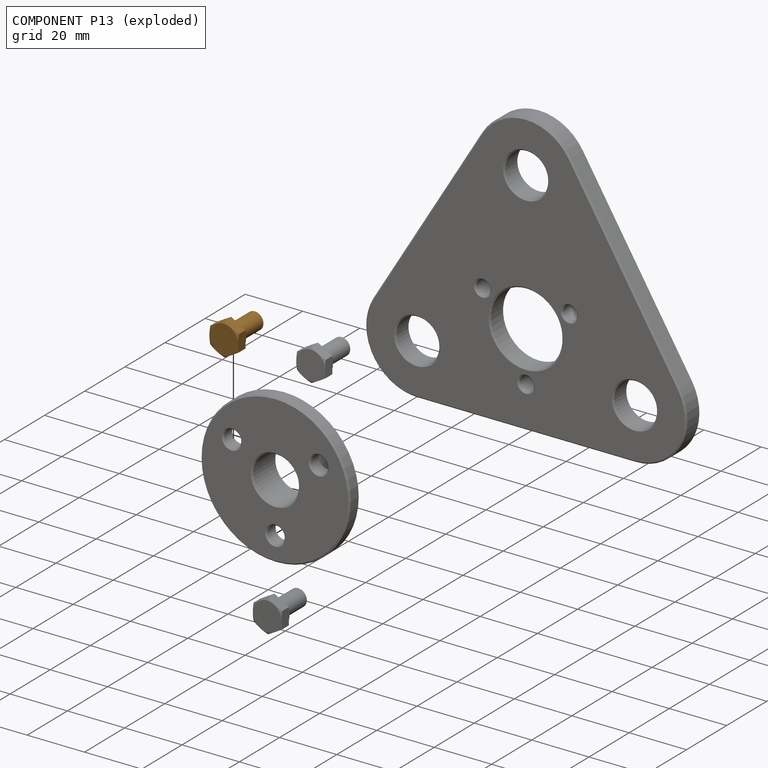
[diagram: component P13 — exploded]
COMPONENT P13 — geometry summary (no construction recipe available for this part):
  bounding box: 16.5 x 12.0 x 12.0 mm
  B-rep topology: 1 solid, 25 faces, 104 edges
  volume: 690 mm^3 (29% of its bounding box)
  symmetry: 6-fold rotationally symmetric about the x axis; mirror-symmetric across its y mid-plane, z mid-plane
Held by: FASTENED mate "Fastened 2" to P3; FASTENED mate "Fastened 2" to P3.
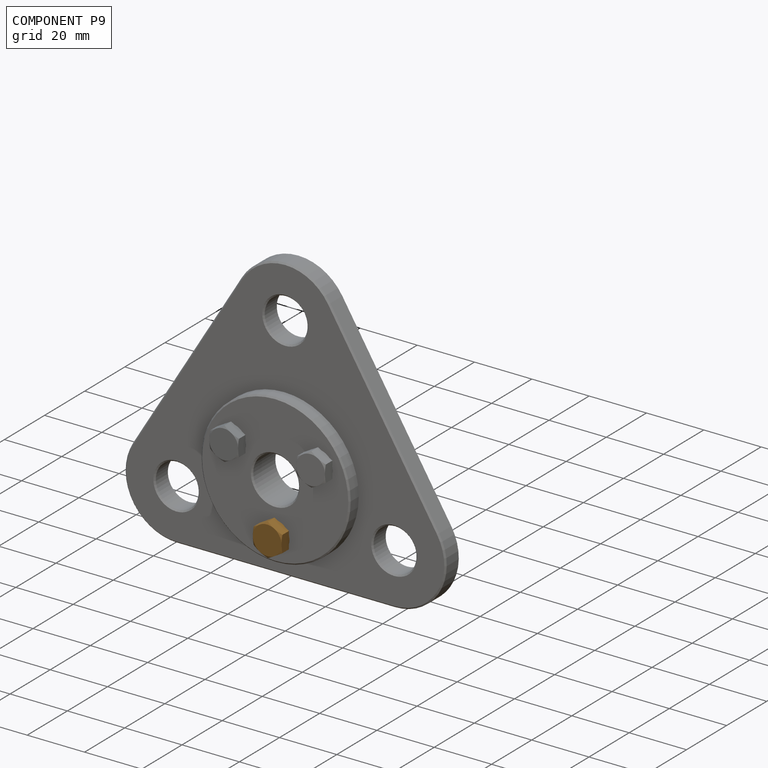
[diagram: component P9 — assembled]
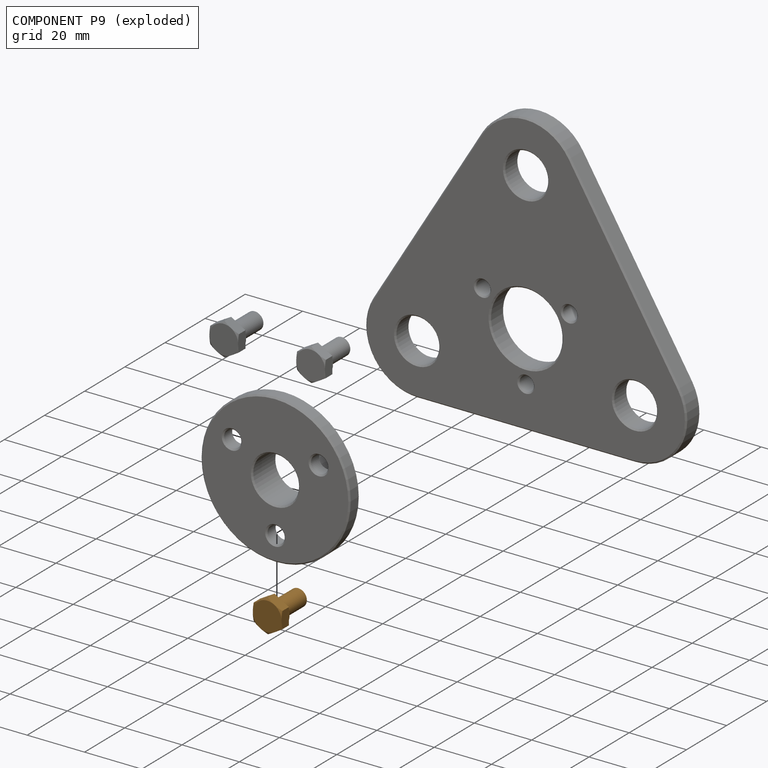
[diagram: component P9 — exploded]
COMPONENT P9 — geometry summary (no construction recipe available for this part):
  bounding box: 16.5 x 12.0 x 12.0 mm
  B-rep topology: 1 solid, 25 faces, 104 edges
  volume: 690 mm^3 (29% of its bounding box)
  symmetry: 6-fold rotationally symmetric about the x axis; mirror-symmetric across its y mid-plane, z mid-plane
Held by: FASTENED mate "Fastened 2" to P3; FASTENED mate "Fastened 2" to P3.
PROVENANCE & LICENSES
Assembly (occurrences, transforms, mates, per-part STEP geometry): AutoMate dataset, Zenodo record 7776208, CC0.
Construction recipes: CADFS (HuggingFace VladPyatov/CADFS, CC-BY-4.0, layered over the ABC dataset), FeatureScript reconstruction programs keyed by ABC model id.
Join: ABC meta listings map ABC model id -> Onshape documentId; within a shared document, parts are matched by geometric signature (bounding-box dims + volume at 0.1% relative tolerance, exact B-rep face/solid counts).
Verification: 5 of this assembly's 25 components carry a recipe attachment, and every attachment is mesh-verified: the CADFS STEP and the AutoMate member STEP were compared as meshes in their shared local frame (symmetric sampled-point-to-mesh distance); worst across the 5 attachments: below the mesh-comparison resolution (tessellation chordal tolerance ~0.224 mm) on a 149 mm part.
Renders: orthographic iso camera (az 35 / el 25); the floor grid conveys scale (grid pitch printed in each image; no ruler). In the exploded view each component is displaced by its stored offset vector: the offsets alone carry the explosion direction (mate normal/axis signs are not orientation cues and do not encode it), and separation distances are assigned per mate-chain, not proportionally to assembly-order depth.
